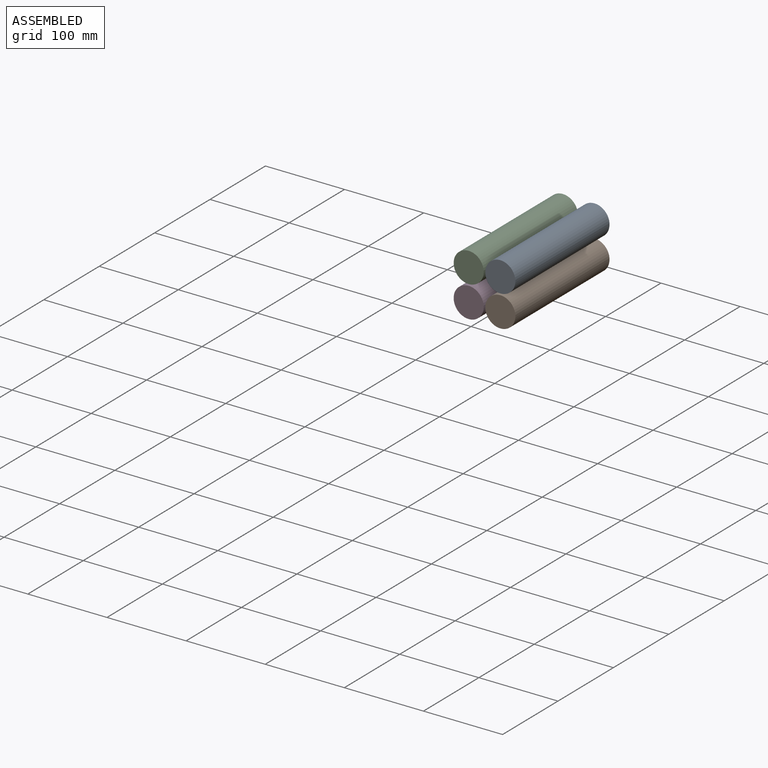
[diagram: assembled view]
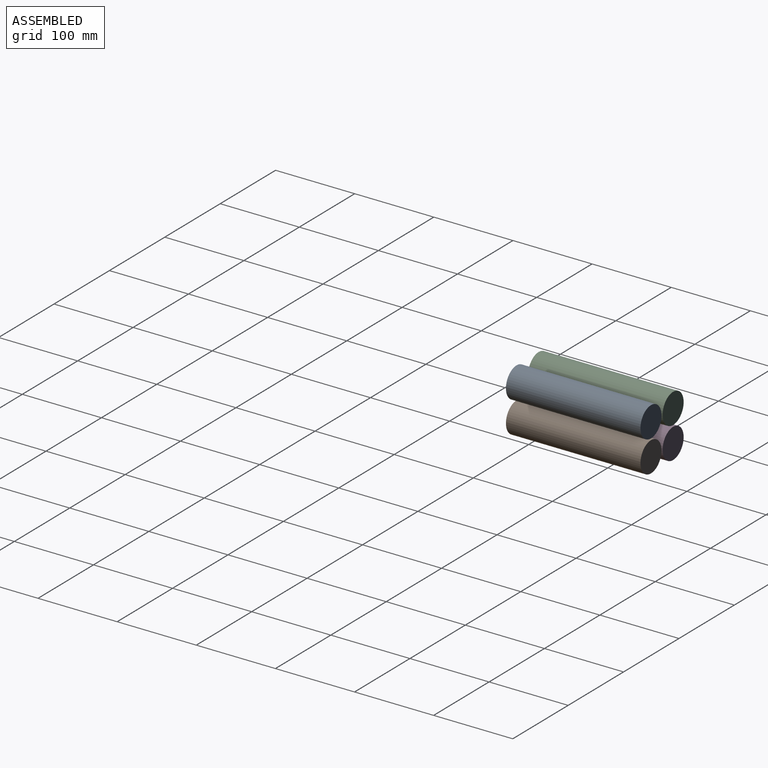
[diagram: assembled view, second angle]
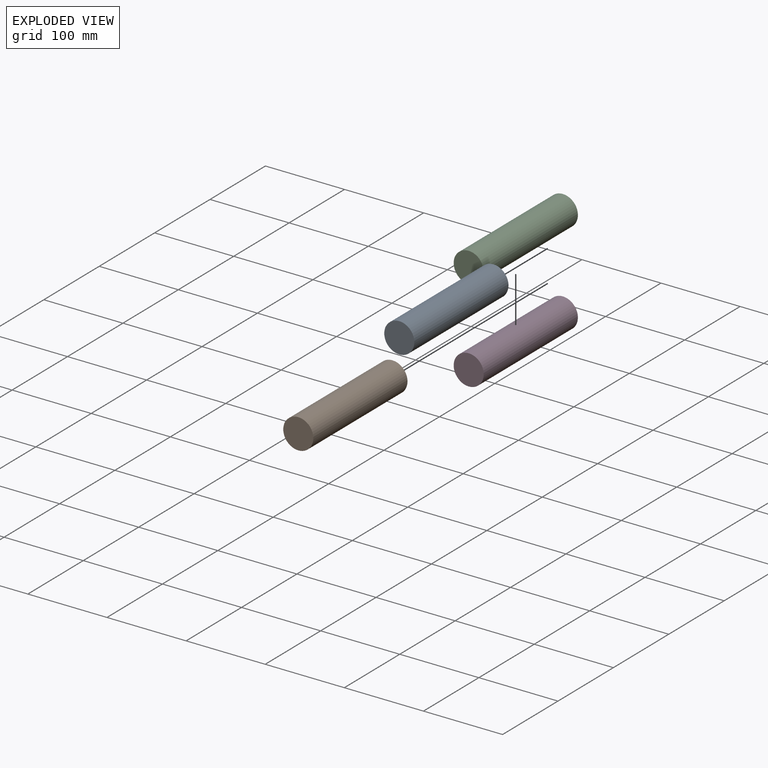
[diagram: exploded view]
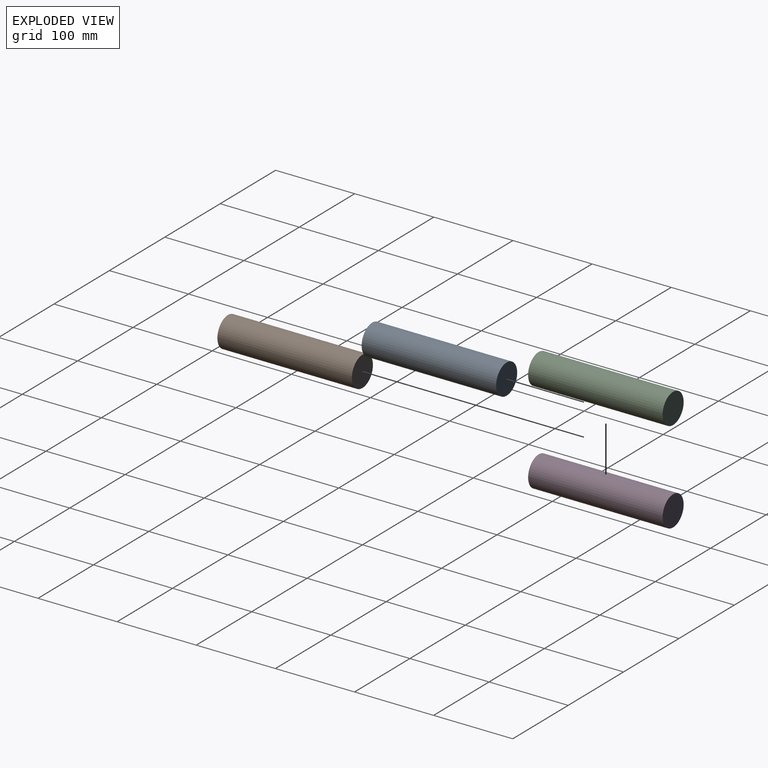
[diagram: exploded view, second angle]
ASSEMBLY  parts=4 mates=3
PART A: 3 faces, bbox 38x170x38 mm
  f0: cylinder r=19mm len=170mm, axis (0,1,0), area 20294.7mm2, adj f1,f2
  f1: plane 38x38mm, normal (0,-1,0), area 1134.1mm2, adj f0
  f2: plane 38x38mm, normal (0,1,0), area 1134.1mm2, adj f0
PART B: same geometry as A
PART C: same geometry as A
PART D: same geometry as A
PLACE A t=(-73.95,42.86,83.33)mm
PLACE B t=(-73.95,42.86,43.33)mm
PLACE C rot(axis=(0,1,0),0deg) t=(-113.95,42.86,83.33)mm
PLACE D rot(axis=(0,1,0),0deg) t=(-113.95,42.86,43.33)mm
MATE planar A.f0 <-> C.f0  axis (0,-1,0) through (-73.95,-127.14,83.33)mm
MATE planar D.f0 <-> B.f0  axis (0,-1,0) through (-113.95,-127.14,43.33)mm
MATE planar C.f0 <-> D.f0  axis (0,-1,0) through (-113.95,-127.14,83.33)mm
